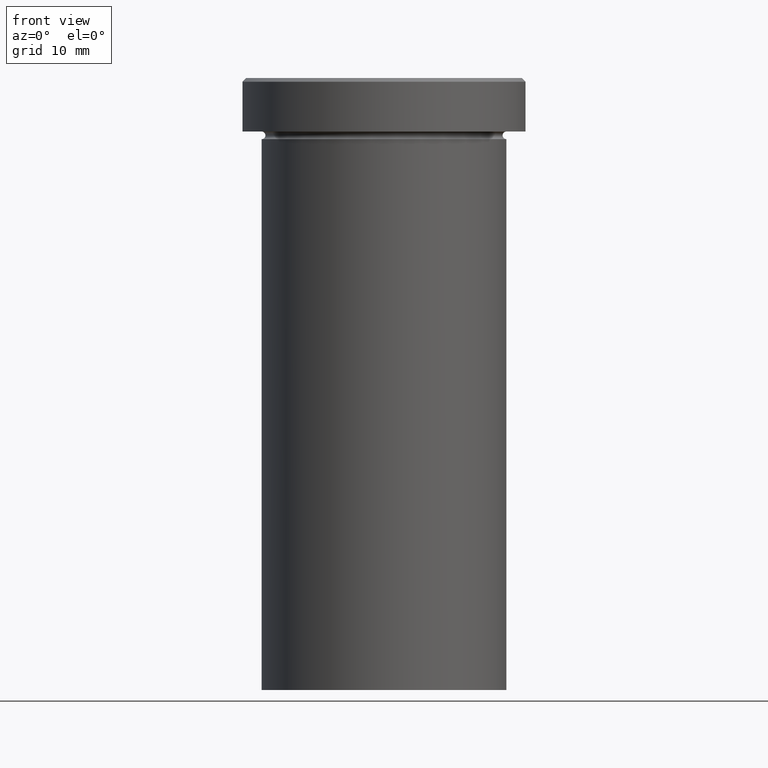
[diagram: clean part render]
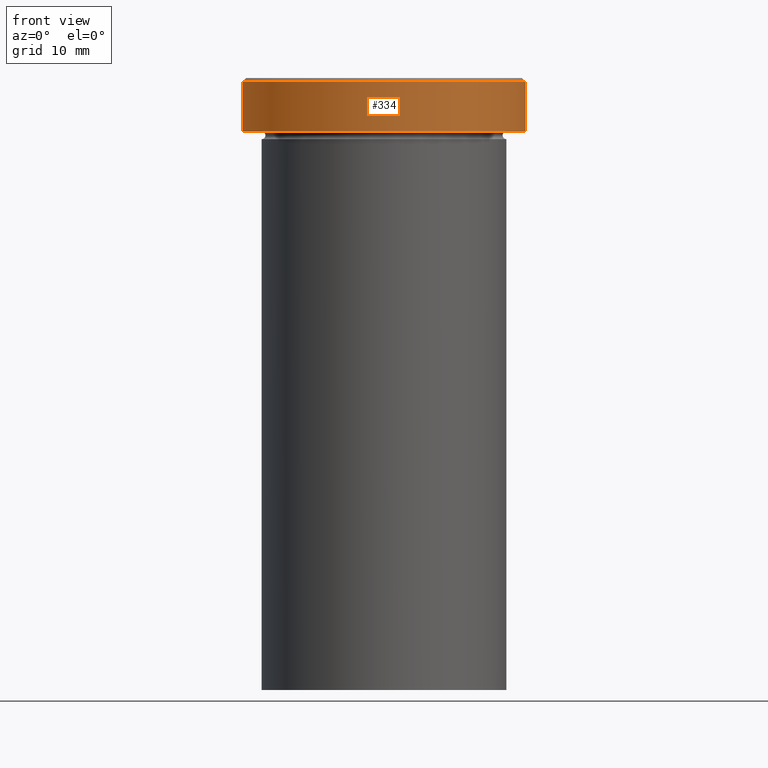
[diagram: same view with one face highlighted and labeled with its STEP entity id]
A machine part, front view. The second image highlights one B-rep face of the part: STEP entity #334.
In plain terms, the highlighted cylindrical surface (partial cylindrical patch) has radius 18.5 mm, axis along (-0, -0, 1).
Its self-contained STEP definition (entity closure, byte-faithful):
#2 = VERTEX_POINT ( 'NONE', #41 ) ;
#8 = FACE_OUTER_BOUND ( 'NONE', #200, .T. ) ;
#17 = VERTEX_POINT ( 'NONE', #253 ) ;
#41 = CARTESIAN_POINT ( 'NONE',  ( -18.50000000000000000, 2.265596578422603396E-15, -0.5000000000000213163 ) ) ;
#45 = EDGE_CURVE ( 'NONE', #47, #270, #161, .T. ) ;
#47 = VERTEX_POINT ( 'NONE', #291 ) ;
#58 = EDGE_CURVE ( 'NONE', #270, #2, #137, .T. ) ;
#65 = DIRECTION ( 'NONE',  ( -0.000000000000000000, -0.000000000000000000, 1.000000000000000000 ) ) ;
#70 = CARTESIAN_POINT ( 'NONE',  ( -18.50000000000000000, 2.265596578422603396E-15, 0.000000000000000000 ) ) ;
#76 = DIRECTION ( 'NONE',  ( 1.000000000000000000, 0.000000000000000000, 0.000000000000000000 ) ) ;
#98 = EDGE_CURVE ( 'NONE', #17, #2, #125, .T. ) ;
#103 = DIRECTION ( 'NONE',  ( 0.000000000000000000, 0.000000000000000000, -1.000000000000000000 ) ) ;
#120 = ORIENTED_EDGE ( 'NONE', *, *, #45, .T. ) ;
#125 = LINE ( 'NONE', #70, #369 ) ;
#128 = AXIS2_PLACEMENT_3D ( 'NONE', #150, #103, #240 ) ;
#137 = CIRCLE ( 'NONE', #128, 18.50000000000000000 ) ;
#139 = EDGE_CURVE ( 'NONE', #17, #47, #310, .T. ) ;
#150 = CARTESIAN_POINT ( 'NONE',  ( 0.000000000000000000, 0.000000000000000000, -0.5000000000000213163 ) ) ;
#161 = LINE ( 'NONE', #406, #319 ) ;
#200 = EDGE_LOOP ( 'NONE', ( #231, #273, #120, #279 ) ) ;
#228 = CYLINDRICAL_SURFACE ( 'NONE', #368, 18.50000000000000000 ) ;
#231 = ORIENTED_EDGE ( 'NONE', *, *, #98, .F. ) ;
#240 = DIRECTION ( 'NONE',  ( 1.000000000000000000, 0.000000000000000000, 0.000000000000000000 ) ) ;
#241 = DIRECTION ( 'NONE',  ( 1.000000000000000000, 0.000000000000000000, 0.000000000000000000 ) ) ;
#248 = DIRECTION ( 'NONE',  ( -0.000000000000000000, -0.000000000000000000, 1.000000000000000000 ) ) ;
#253 = CARTESIAN_POINT ( 'NONE',  ( -18.50000000000000000, 2.265596578422603396E-15, -6.999999999999998224 ) ) ;
#255 = DIRECTION ( 'NONE',  ( -0.000000000000000000, -0.000000000000000000, 1.000000000000000000 ) ) ;
#270 = VERTEX_POINT ( 'NONE', #402 ) ;
#272 = CARTESIAN_POINT ( 'NONE',  ( 0.000000000000000000, 0.000000000000000000, 0.000000000000000000 ) ) ;
#273 = ORIENTED_EDGE ( 'NONE', *, *, #139, .T. ) ;
#279 = ORIENTED_EDGE ( 'NONE', *, *, #58, .T. ) ;
#283 = CARTESIAN_POINT ( 'NONE',  ( 0.000000000000000000, 0.000000000000000000, -6.999999999999998224 ) ) ;
#291 = CARTESIAN_POINT ( 'NONE',  ( 18.50000000000000000, 0.000000000000000000, -6.999999999999998224 ) ) ;
#299 = AXIS2_PLACEMENT_3D ( 'NONE', #283, #248, #241 ) ;
#310 = CIRCLE ( 'NONE', #299, 18.50000000000000000 ) ;
#319 = VECTOR ( 'NONE', #65, 1000.000000000000000 ) ;
#334 = ADVANCED_FACE ( 'NONE', ( #8 ), #228, .T. ) ;
#368 = AXIS2_PLACEMENT_3D ( 'NONE', #272, #398, #76 ) ;
#369 = VECTOR ( 'NONE', #255, 1000.000000000000000 ) ;
#398 = DIRECTION ( 'NONE',  ( -0.000000000000000000, -0.000000000000000000, 1.000000000000000000 ) ) ;
#402 = CARTESIAN_POINT ( 'NONE',  ( 18.50000000000000000, 0.000000000000000000, -0.5000000000000213163 ) ) ;
#406 = CARTESIAN_POINT ( 'NONE',  ( 18.50000000000000000, 0.000000000000000000, 0.000000000000000000 ) ) ;